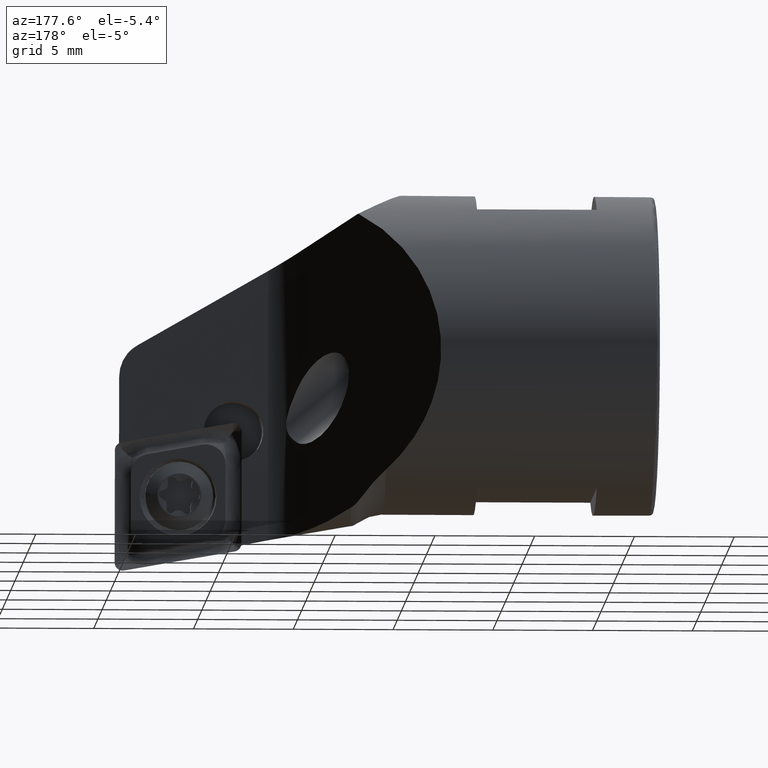
[diagram: clean part render]
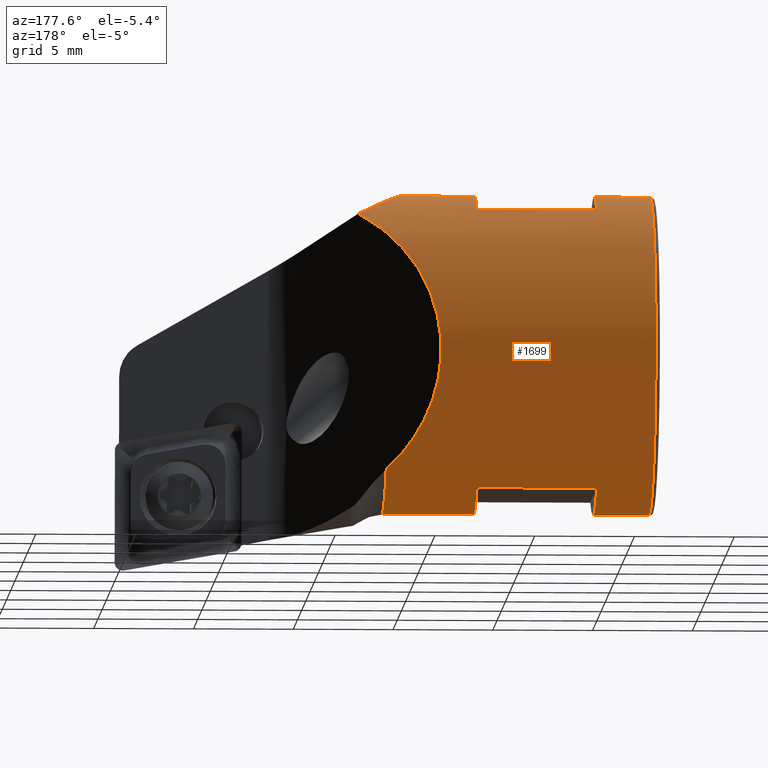
[diagram: same view with one face highlighted and labeled with its STEP entity id]
A machine part, auxiliary view. The second image highlights one B-rep face of the part: STEP entity #1699.
In plain terms, the highlighted cylindrical surface (partial cylindrical patch) has radius 8 mm, axis along (-1, -0, -0).
Its self-contained STEP definition (entity closure, byte-faithful):
#21 = VECTOR ( 'NONE', #2919, 1000.000000000000000 ) ;
#43 = EDGE_CURVE ( 'NONE', #1201, #2814, #2877, .T. ) ;
#175 = CARTESIAN_POINT ( 'NONE',  ( -18.00000000000000400, 0.0000000000000000000, 10.87500000000000000 ) ) ;
#188 = VECTOR ( 'NONE', #3849, 1000.000000000000000 ) ;
#197 = LINE ( 'NONE', #885, #21 ) ;
#203 = EDGE_CURVE ( 'NONE', #3035, #2145, #734, .T. ) ;
#284 = VERTEX_POINT ( 'NONE', #3192 ) ;
#304 = CARTESIAN_POINT ( 'NONE',  ( -24.00000000000000000, 9.797174393178825700E-016, 2.874999999999999100 ) ) ;
#313 = AXIS2_PLACEMENT_3D ( 'NONE', #1394, #2548, #2567 ) ;
#314 = CIRCLE ( 'NONE', #4470, 8.000000000000000000 ) ;
#323 = CARTESIAN_POINT ( 'NONE',  ( -24.00000000000000000, 3.872983346207416100, 3.874999999999999100 ) ) ;
#412 = EDGE_CURVE ( 'NONE', #2145, #3783, #456, .T. ) ;
#434 = EDGE_CURVE ( 'NONE', #1201, #2522, #3484, .T. ) ;
#440 = CARTESIAN_POINT ( 'NONE',  ( -18.00000000000000400, 3.872983346207417000, 3.874999999999999100 ) ) ;
#456 = LINE ( 'NONE', #3868, #188 ) ;
#709 = VERTEX_POINT ( 'NONE', #3523 ) ;
#726 = EDGE_CURVE ( 'NONE', #284, #709, #2227, .T. ) ;
#734 = CIRCLE ( 'NONE', #313, 8.000000000000000000 ) ;
#758 = EDGE_CURVE ( 'NONE', #2074, #284, #1586, .T. ) ;
#810 = CARTESIAN_POINT ( 'NONE',  ( -14.41057324405824100, 0.0000000000000000000, 18.87500000000000000 ) ) ;
#885 = CARTESIAN_POINT ( 'NONE',  ( -28.59735948021380400, 0.0000000000000000000, 18.87500000000000000 ) ) ;
#901 = EDGE_CURVE ( 'NONE', #709, #4113, #314, .T. ) ;
#932 = EDGE_CURVE ( 'NONE', #4113, #3306, #197, .T. ) ;
#963 = AXIS2_PLACEMENT_3D ( 'NONE', #3682, #4064, #3610 ) ;
#996 = DIRECTION ( 'NONE',  ( 0.0000000000000000000, 0.0000000000000000000, 1.000000000000000000 ) ) ;
#1012 = DIRECTION ( 'NONE',  ( 0.0000000000000000000, 0.0000000000000000000, 1.000000000000000000 ) ) ;
#1049 = LINE ( 'NONE', #2181, #3049 ) ;
#1101 = VERTEX_POINT ( 'NONE', #2035 ) ;
#1169 = ORIENTED_EDGE ( 'NONE', *, *, #43, .T. ) ;
#1201 = VERTEX_POINT ( 'NONE', #3498 ) ;
#1256 = CIRCLE ( 'NONE', #963, 8.000000000000000000 ) ;
#1370 = DIRECTION ( 'NONE',  ( -1.000000000000000000, 0.0000000000000000000, 0.0000000000000000000 ) ) ;
#1391 = ORIENTED_EDGE ( 'NONE', *, *, #1555, .T. ) ;
#1394 = CARTESIAN_POINT ( 'NONE',  ( -18.00000000000000400, 0.0000000000000000000, 10.87500000000000000 ) ) ;
#1460 = CARTESIAN_POINT ( 'NONE',  ( -13.40000000000000000, 0.0000000000000000000, 10.87500000000000000 ) ) ;
#1473 = CARTESIAN_POINT ( 'NONE',  ( -26.80000000000000100, 0.0000000000000000000, 10.87500000000000000 ) ) ;
#1477 = DIRECTION ( 'NONE',  ( 1.000000000000000000, 0.0000000000000000000, 0.0000000000000000000 ) ) ;
#1479 = DIRECTION ( 'NONE',  ( 0.0000000000000000000, 0.0000000000000000000, -1.000000000000000000 ) ) ;
#1515 = DIRECTION ( 'NONE',  ( -1.000000000000000000, -0.0000000000000000000, -0.0000000000000000000 ) ) ;
#1520 = LINE ( 'NONE', #4443, #4150 ) ;
#1538 = CARTESIAN_POINT ( 'NONE',  ( -24.00000000000000000, 0.0000000000000000000, 10.87500000000000000 ) ) ;
#1555 = EDGE_CURVE ( 'NONE', #1101, #3306, #1708, .T. ) ;
#1585 = CARTESIAN_POINT ( 'NONE',  ( -14.36192625257542200, 1.554862820819822700, 18.87499999999999600 ) ) ;
#1586 = CIRCLE ( 'NONE', #3229, 8.000000000000000000 ) ;
#1596 = CARTESIAN_POINT ( 'NONE',  ( -13.54410832939425900, 3.045905834758147800, 18.43410418220003800 ) ) ;
#1623 = EDGE_CURVE ( 'NONE', #2814, #3938, #3330, .T. ) ;
#1699 = ADVANCED_FACE ( 'NONE', ( #3962 ), #2038, .T. ) ;
#1708 = CIRCLE ( 'NONE', #3206, 8.000000000000000000 ) ;
#1755 = EDGE_CURVE ( 'NONE', #3818, #1101, #2888, .T. ) ;
#1807 = DIRECTION ( 'NONE',  ( -1.000000000000000000, -0.0000000000000000000, -0.0000000000000000000 ) ) ;
#1822 = EDGE_CURVE ( 'NONE', #2522, #2074, #1520, .T. ) ;
#1863 = EDGE_CURVE ( 'NONE', #3938, #3035, #1049, .T. ) ;
#1912 = DIRECTION ( 'NONE',  ( 1.000000000000000000, 0.0000000000000000000, 0.0000000000000000000 ) ) ;
#1967 = VECTOR ( 'NONE', #1515, 1000.000000000000000 ) ;
#2035 = CARTESIAN_POINT ( 'NONE',  ( -26.80000000000000100, 9.797174393178825700E-016, 2.874999999999999100 ) ) ;
#2038 = CYLINDRICAL_SURFACE ( 'NONE', #3530, 8.000000000000000000 ) ;
#2074 = VERTEX_POINT ( 'NONE', #4268 ) ;
#2145 = VERTEX_POINT ( 'NONE', #440 ) ;
#2181 = CARTESIAN_POINT ( 'NONE',  ( -28.59735948021380400, 9.797174393178825700E-016, 2.874999999999999100 ) ) ;
#2187 = DIRECTION ( 'NONE',  ( -1.000000000000000000, -0.0000000000000000000, -0.0000000000000000000 ) ) ;
#2227 = LINE ( 'NONE', #3525, #1967 ) ;
#2238 = CARTESIAN_POINT ( 'NONE',  ( -26.80000000000000100, 0.0000000000000000000, 18.87500000000000000 ) ) ;
#2273 = ORIENTED_EDGE ( 'NONE', *, *, #203, .T. ) ;
#2335 = EDGE_CURVE ( 'NONE', #3783, #3818, #1256, .T. ) ;
#2522 = VERTEX_POINT ( 'NONE', #810 ) ;
#2548 = DIRECTION ( 'NONE',  ( 1.000000000000000000, 0.0000000000000000000, 0.0000000000000000000 ) ) ;
#2567 = DIRECTION ( 'NONE',  ( 0.0000000000000000000, 0.0000000000000000000, -1.000000000000000000 ) ) ;
#2566 = CARTESIAN_POINT ( 'NONE',  ( -24.00000000000000000, 0.0000000000000000000, 18.87500000000000000 ) ) ;
#2706 = ORIENTED_EDGE ( 'NONE', *, *, #1755, .T. ) ;
#2814 = VERTEX_POINT ( 'NONE', #4060 ) ;
#2874 = DIRECTION ( 'NONE',  ( 0.0000000000000000000, 0.0000000000000000000, -1.000000000000000000 ) ) ;
#2877 =( BOUNDED_CURVE ( )  B_SPLINE_CURVE ( 3, ( #4563, #4568, #4584, #4558 ),
 .UNSPECIFIED., .F., .F. ) 
 B_SPLINE_CURVE_WITH_KNOTS ( ( 4, 4 ),
 ( 5.235036566639994500, 7.118230486748848000 ),
 .UNSPECIFIED. ) 
 CURVE ( )  GEOMETRIC_REPRESENTATION_ITEM ( )  RATIONAL_B_SPLINE_CURVE ( ( 1.000000000000000000, 0.7256650903258128300, 0.7256650903258128300, 1.000000000000000000 ) ) 
 REPRESENTATION_ITEM ( '' )  );
#2888 = LINE ( 'NONE', #4555, #3618 ) ;
#2919 = DIRECTION ( 'NONE',  ( -1.000000000000000000, -0.0000000000000000000, -0.0000000000000000000 ) ) ;
#2986 = ORIENTED_EDGE ( 'NONE', *, *, #2335, .T. ) ;
#3035 = VERTEX_POINT ( 'NONE', #3322 ) ;
#3049 = VECTOR ( 'NONE', #2187, 1000.000000000000000 ) ;
#3133 = CARTESIAN_POINT ( 'NONE',  ( -14.41057324405824100, 0.0000000000000000000, 18.87500000000000000 ) ) ;
#3192 = CARTESIAN_POINT ( 'NONE',  ( -18.00000000000000400, 3.872983346207417900, 17.87500000000000000 ) ) ;
#3206 = AXIS2_PLACEMENT_3D ( 'NONE', #1473, #1477, #1479 ) ;
#3229 = AXIS2_PLACEMENT_3D ( 'NONE', #175, #1370, #1012 ) ;
#3306 = VERTEX_POINT ( 'NONE', #2238 ) ;
#3307 = ORIENTED_EDGE ( 'NONE', *, *, #412, .T. ) ;
#3322 = CARTESIAN_POINT ( 'NONE',  ( -18.00000000000000400, 9.797174393178825700E-016, 2.874999999999999100 ) ) ;
#3330 = CIRCLE ( 'NONE', #3689, 8.000000000000003600 ) ;
#3484 =( BOUNDED_CURVE ( )  B_SPLINE_CURVE ( 3, ( #3817, #1596, #1585, #3133 ),
 .UNSPECIFIED., .F., .F. ) 
 B_SPLINE_CURVE_WITH_KNOTS ( ( 4, 4 ),
 ( 5.690292191861443500, 6.265299655676582100 ),
 .UNSPECIFIED. ) 
 CURVE ( )  GEOMETRIC_REPRESENTATION_ITEM ( )  RATIONAL_B_SPLINE_CURVE ( ( 1.000000000000000000, 0.9726364684065395000, 0.9726364684065395000, 1.000000000000000000 ) ) 
 REPRESENTATION_ITEM ( '' )  );
#3498 = CARTESIAN_POINT ( 'NONE',  ( -12.02425463425073600, 4.350728433957631800, 17.58850594651947200 ) ) ;
#3506 = ORIENTED_EDGE ( 'NONE', *, *, #434, .F. ) ;
#3523 = CARTESIAN_POINT ( 'NONE',  ( -24.00000000000000000, 3.872983346207417000, 17.87500000000000000 ) ) ;
#3525 = CARTESIAN_POINT ( 'NONE',  ( -28.59735948021380400, 3.872983346207417900, 17.87500000000000000 ) ) ;
#3530 = AXIS2_PLACEMENT_3D ( 'NONE', #4357, #4339, #4361 ) ;
#3610 = DIRECTION ( 'NONE',  ( 0.0000000000000000000, 0.0000000000000000000, 1.000000000000000000 ) ) ;
#3613 = ORIENTED_EDGE ( 'NONE', *, *, #758, .F. ) ;
#3618 = VECTOR ( 'NONE', #4634, 1000.000000000000000 ) ;
#3643 = ORIENTED_EDGE ( 'NONE', *, *, #1822, .F. ) ;
#3682 = CARTESIAN_POINT ( 'NONE',  ( -24.00000000000000000, 0.0000000000000000000, 10.87500000000000000 ) ) ;
#3689 = AXIS2_PLACEMENT_3D ( 'NONE', #1460, #1807, #996 ) ;
#3718 = ORIENTED_EDGE ( 'NONE', *, *, #726, .F. ) ;
#3773 = ORIENTED_EDGE ( 'NONE', *, *, #901, .F. ) ;
#3779 = ORIENTED_EDGE ( 'NONE', *, *, #932, .F. ) ;
#3783 = VERTEX_POINT ( 'NONE', #323 ) ;
#3817 = CARTESIAN_POINT ( 'NONE',  ( -12.02425463425073600, 4.350728433957631800, 17.58850594651947200 ) ) ;
#3818 = VERTEX_POINT ( 'NONE', #304 ) ;
#3849 = DIRECTION ( 'NONE',  ( -1.000000000000000000, -0.0000000000000000000, -0.0000000000000000000 ) ) ;
#3868 = CARTESIAN_POINT ( 'NONE',  ( -28.59735948021380400, 3.872983346207416100, 3.874999999999999100 ) ) ;
#3938 = VERTEX_POINT ( 'NONE', #3960 ) ;
#3945 = EDGE_LOOP ( 'NONE', ( #4434, #4481, #2273, #3307, #2986, #2706, #1391, #3779, #3773, #3718, #3613, #3643, #3506, #1169 ) ) ;
#3960 = CARTESIAN_POINT ( 'NONE',  ( -13.40000000000000000, 9.797174393178827600E-016, 2.874999999999997300 ) ) ;
#3962 = FACE_OUTER_BOUND ( 'NONE', #3945, .T. ) ;
#4060 = CARTESIAN_POINT ( 'NONE',  ( -13.40000000000000000, 5.051410895667328500, 4.671513241479963200 ) ) ;
#4064 = DIRECTION ( 'NONE',  ( -1.000000000000000000, 0.0000000000000000000, 0.0000000000000000000 ) ) ;
#4113 = VERTEX_POINT ( 'NONE', #2566 ) ;
#4150 = VECTOR ( 'NONE', #4212, 1000.000000000000000 ) ;
#4212 = DIRECTION ( 'NONE',  ( -1.000000000000000000, -0.0000000000000000000, -0.0000000000000000000 ) ) ;
#4268 = CARTESIAN_POINT ( 'NONE',  ( -18.00000000000000400, 0.0000000000000000000, 18.87500000000000000 ) ) ;
#4339 = DIRECTION ( 'NONE',  ( -1.000000000000000000, -0.0000000000000000000, -0.0000000000000000000 ) ) ;
#4357 = CARTESIAN_POINT ( 'NONE',  ( -28.59735948021380400, 0.0000000000000000000, 10.87500000000000000 ) ) ;
#4361 = DIRECTION ( 'NONE',  ( 0.0000000000000000000, 0.0000000000000000000, 1.000000000000000000 ) ) ;
#4434 = ORIENTED_EDGE ( 'NONE', *, *, #1623, .T. ) ;
#4443 = CARTESIAN_POINT ( 'NONE',  ( -28.59735948021380400, 0.0000000000000000000, 18.87500000000000000 ) ) ;
#4470 = AXIS2_PLACEMENT_3D ( 'NONE', #1538, #1912, #2874 ) ;
#4481 = ORIENTED_EDGE ( 'NONE', *, *, #1863, .T. ) ;
#4555 = CARTESIAN_POINT ( 'NONE',  ( -28.59735948021380400, 9.797174393178825700E-016, 2.874999999999999100 ) ) ;
#4558 = CARTESIAN_POINT ( 'NONE',  ( -13.40000000000000000, 5.051410895667328500, 4.671513241479963200 ) ) ;
#4563 = CARTESIAN_POINT ( 'NONE',  ( -12.02425463425073600, 4.350728433957631800, 17.58850594651947200 ) ) ;
#4568 = CARTESIAN_POINT ( 'NONE',  ( -17.17311153594102500, 9.337291796340105400, 14.35693317645344500 ) ) ;
#4584 = CARTESIAN_POINT ( 'NONE',  ( -17.80505841432425700, 9.659149391095050800, 8.423529058749510400 ) ) ;
#4634 = DIRECTION ( 'NONE',  ( -1.000000000000000000, -0.0000000000000000000, -0.0000000000000000000 ) ) ;